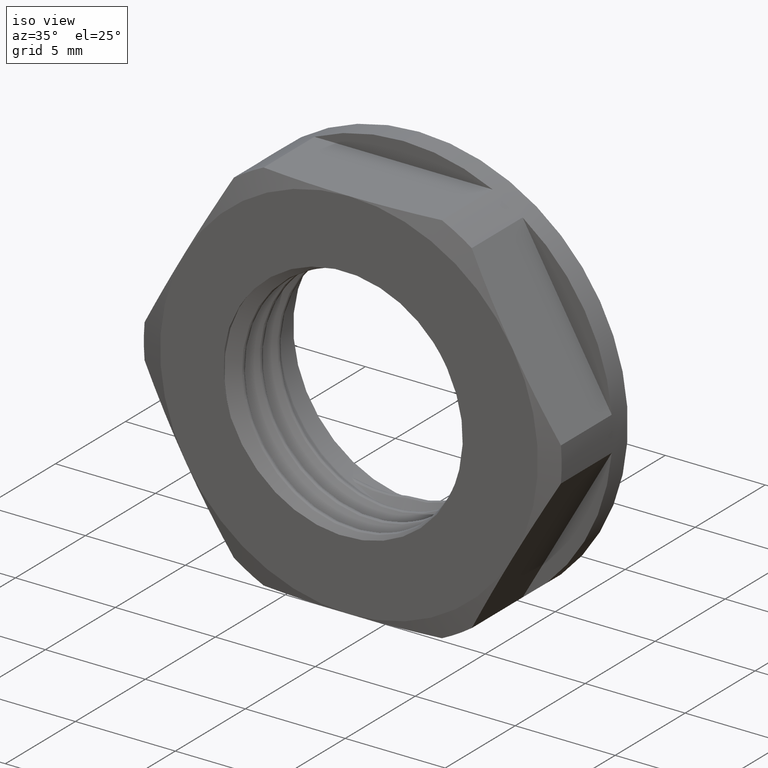
[diagram: clean part render]
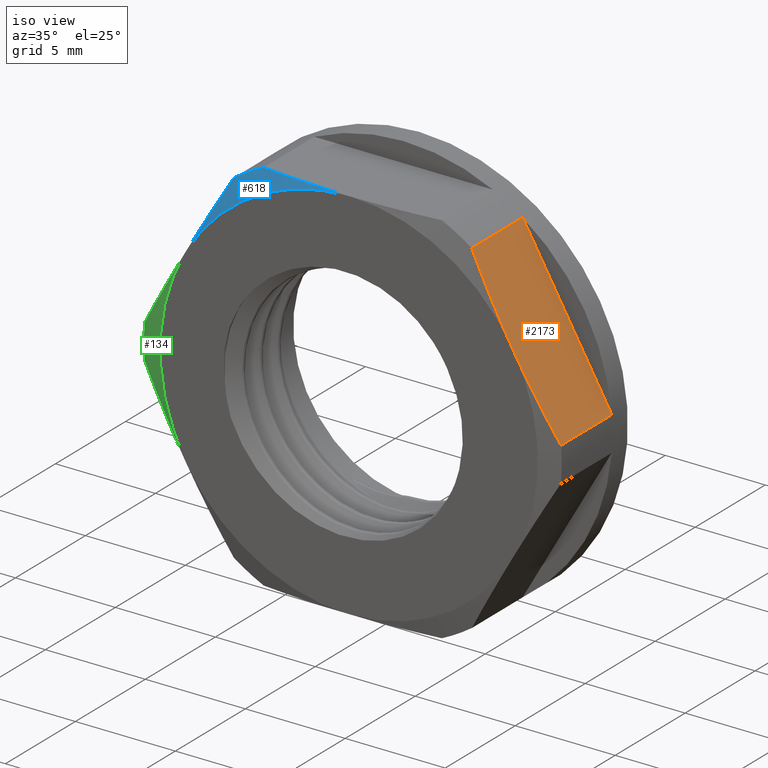
[diagram: same view with three faces highlighted in distinct colors, each labeled with its STEP entity id]
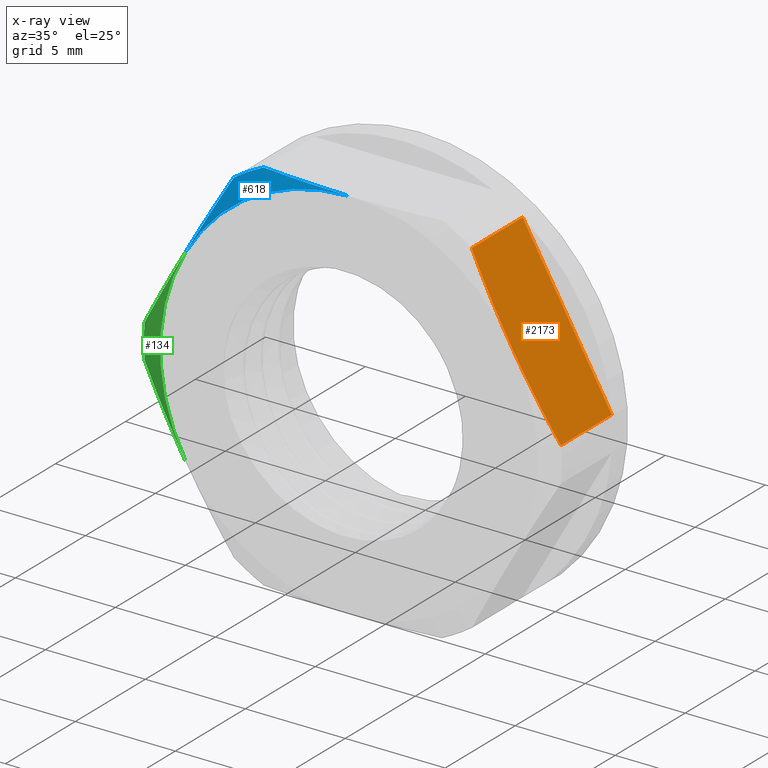
[diagram: x-ray of the same camera — body ghosted, the three highlighted faces saturated]
A machine part, iso view with three faces highlighted in distinct colors.
The next image is the same camera in x-ray (body ghosted, the three faces saturated) — at least one of them is partly hidden behind the body in this view.
Their STEP definitions:

[orange] entity #2173 — the highlighted planar face has unit normal (-0.866, 0, -0.5).
#133 = VECTOR ( 'NONE', #1901, 1000.000000000000000 ) ;
#207 = CARTESIAN_POINT ( 'NONE',  ( 8.183940065762941529, 2.409999999999999698, 4.724999999999999645 ) ) ;
#303 = FACE_OUTER_BOUND ( 'NONE', #1942, .T. ) ;
#335 = EDGE_CURVE ( 'NONE', #1764, #1808, #1727, .T. ) ;
#346 = CARTESIAN_POINT ( 'NONE',  ( 10.41441086808250027, 2.677949192431114955, 0.8617112455836100082 ) ) ;
#354 = DIRECTION ( 'NONE',  ( -0.4999999999999998890, 0.0000000000000000000, 0.8660254037844387076 ) ) ;
#415 = DIRECTION ( 'NONE',  ( -0.4999999999999998890, 0.0000000000000000000, 0.8660254037844387076 ) ) ;
#438 = ORIENTED_EDGE ( 'NONE', *, *, #335, .F. ) ;
#474 = ORIENTED_EDGE ( 'NONE', *, *, #1717, .F. ) ;
#560 = CARTESIAN_POINT ( 'NONE',  ( 5.953469263443389892, 2.677949192431114955, 8.588288754416380399 ) ) ;
#568 = AXIS2_PLACEMENT_3D ( 'NONE', #1875, #1983, #354 ) ;
#570 = CARTESIAN_POINT ( 'NONE',  ( 6.696959530883240141, 2.507863421158958772, 7.300525836277587999 ) ) ;
#605 = EDGE_CURVE ( 'NONE', #1851, #1134, #1645, .T. ) ;
#622 = LINE ( 'NONE', #1936, #810 ) ;
#743 = ORIENTED_EDGE ( 'NONE', *, *, #605, .F. ) ;
#810 = VECTOR ( 'NONE', #415, 1000.000000000000000 ) ;
#916 = B_SPLINE_CURVE_WITH_KNOTS ( 'NONE', 3,
 ( #346, #1051, #1735, #207 ),
 .UNSPECIFIED., .F., .F.,
 ( 4, 4 ),
 ( 2.309401076656162442E-07, 0.004461172544746781765 ),
 .UNSPECIFIED. ) ;
#951 = CARTESIAN_POINT ( 'NONE',  ( 5.953469263443389892, 6.309999999999999609, 8.588288754416380399 ) ) ;
#1025 = VECTOR ( 'NONE', #2149, 1000.000000000000000 ) ;
#1051 = CARTESIAN_POINT ( 'NONE',  ( 9.670920600642643805, 2.507863421158958772, 2.149474163722405518 ) ) ;
#1134 = VERTEX_POINT ( 'NONE', #1598 ) ;
#1219 = CARTESIAN_POINT ( 'NONE',  ( 5.953469263443389892, 34.48836049169644724, 8.588288754416380399 ) ) ;
#1256 = CARTESIAN_POINT ( 'NONE',  ( 5.953469263443389892, 2.677949192431114955, 8.588288754416380399 ) ) ;
#1400 = CARTESIAN_POINT ( 'NONE',  ( 8.183940065762941529, 2.409999999999999698, 4.724999999999999645 ) ) ;
#1415 = ORIENTED_EDGE ( 'NONE', *, *, #1420, .T. ) ;
#1420 = EDGE_CURVE ( 'NONE', #1785, #1808, #2048, .T. ) ;
#1598 = CARTESIAN_POINT ( 'NONE',  ( 10.41441086808250027, 2.677949192431114955, 0.8617112455836100082 ) ) ;
#1621 = CARTESIAN_POINT ( 'NONE',  ( 8.183940065762941529, 2.409999999999999698, 4.724999999999999645 ) ) ;
#1645 = LINE ( 'NONE', #2160, #1025 ) ;
#1694 = ORIENTED_EDGE ( 'NONE', *, *, #1910, .T. ) ;
#1717 = EDGE_CURVE ( 'NONE', #1134, #1764, #916, .T. ) ;
#1727 = B_SPLINE_CURVE_WITH_KNOTS ( 'NONE', 3,
 ( #1400, #2083, #570, #560 ),
 .UNSPECIFIED., .F., .F.,
 ( 4, 4 ),
 ( 0.004461172544746781765, 0.008922114149385883958 ),
 .UNSPECIFIED. ) ;
#1735 = CARTESIAN_POINT ( 'NONE',  ( 8.927430333202794444, 2.409999999999999254, 3.437237081861203691 ) ) ;
#1764 = VERTEX_POINT ( 'NONE', #1621 ) ;
#1785 = VERTEX_POINT ( 'NONE', #951 ) ;
#1791 = CARTESIAN_POINT ( 'NONE',  ( 10.41441086808250027, 6.309999999999999609, 0.8617112455836110074 ) ) ;
#1808 = VERTEX_POINT ( 'NONE', #1256 ) ;
#1851 = VERTEX_POINT ( 'NONE', #1791 ) ;
#1875 = CARTESIAN_POINT ( 'NONE',  ( 5.953469263443389892, 34.48836049169644724, 8.588288754416380399 ) ) ;
#1901 = DIRECTION ( 'NONE',  ( 0.0000000000000000000, -1.000000000000000000, 0.0000000000000000000 ) ) ;
#1910 = EDGE_CURVE ( 'NONE', #1851, #1785, #622, .T. ) ;
#1936 = CARTESIAN_POINT ( 'NONE',  ( 5.953469263443389892, 6.309999999999999609, 8.588288754416380399 ) ) ;
#1942 = EDGE_LOOP ( 'NONE', ( #474, #743, #1694, #1415, #438 ) ) ;
#1983 = DIRECTION ( 'NONE',  ( -0.8660254037844387076, 0.0000000000000000000, -0.4999999999999998890 ) ) ;
#2007 = PLANE ( 'NONE',  #568 ) ;
#2048 = LINE ( 'NONE', #1219, #133 ) ;
#2083 = CARTESIAN_POINT ( 'NONE',  ( 7.440449798323090391, 2.409999999999999254, 6.012762918138793822 ) ) ;
#2149 = DIRECTION ( 'NONE',  ( 0.0000000000000000000, -1.000000000000000000, 0.0000000000000000000 ) ) ;
#2160 = CARTESIAN_POINT ( 'NONE',  ( 10.41441086808250027, 34.48836049169644724, 0.8617112455836110074 ) ) ;
#2173 = ADVANCED_FACE ( 'NONE', ( #303 ), #2007, .F. ) ;

[blue] entity #618 — the highlighted conical surface has half-angle 75 deg.
#65 = CIRCLE ( 'NONE', #2101, 9.449999999999999289 ) ;
#113 = CARTESIAN_POINT ( 'NONE',  ( 0.0000000000000000000, 3.329373671160774872, -1.016253287562780210E-15 ) ) ;
#179 = CARTESIAN_POINT ( 'NONE',  ( -5.953469263443389892, 2.677949192431114955, 8.588288754416380399 ) ) ;
#239 = ORIENTED_EDGE ( 'NONE', *, *, #884, .T. ) ;
#299 = CARTESIAN_POINT ( 'NONE',  ( 0.0000000000000000000, 2.409999999999999698, 9.449999999999999289 ) ) ;
#345 = DIRECTION ( 'NONE',  ( 0.0000000000000000000, -9.178431089824376422E-17, 1.000000000000000000 ) ) ;
#348 = B_SPLINE_CURVE_WITH_KNOTS ( 'NONE', 3,
 ( #299, #1666, #973, #1834, #1138, #643 ),
 .UNSPECIFIED., .F., .F.,
 ( 4, 2, 4 ),
 ( 0.02329190791741629976, 0.02552634913787470844, 0.02776079035833311712 ),
 .UNSPECIFIED. ) ;
#382 = CARTESIAN_POINT ( 'NONE',  ( -7.440449798323092168, 2.410000000000000142, 6.012762918138793822 ) ) ;
#611 = CARTESIAN_POINT ( 'NONE',  ( 0.0000000000000000000, 2.677949192431114955, -1.089157098834630045E-15 ) ) ;
#618 = ADVANCED_FACE ( 'NONE', ( #1612 ), #846, .T. ) ;
#620 = DIRECTION ( 'NONE',  ( 0.0000000000000000000, -1.245016848787182258E-16, 1.000000000000000000 ) ) ;
#643 = CARTESIAN_POINT ( 'NONE',  ( -4.460941604639105051, 2.677949192431114955, 9.449999999999999289 ) ) ;
#681 = EDGE_CURVE ( 'NONE', #755, #1078, #65, .T. ) ;
#709 = ORIENTED_EDGE ( 'NONE', *, *, #681, .T. ) ;
#755 = VERTEX_POINT ( 'NONE', #1532 ) ;
#846 = CONICAL_SURFACE ( 'NONE', #1423, 12.88114925191321980, 1.308996938995753645 ) ;
#884 = EDGE_CURVE ( 'NONE', #1078, #1615, #348, .T. ) ;
#894 = CARTESIAN_POINT ( 'NONE',  ( 0.0000000000000000000, 2.409999999999999698, 9.449999999999999289 ) ) ;
#973 = CARTESIAN_POINT ( 'NONE',  ( -1.485064377453213069, 2.433721300150043287, 9.449999999999999289 ) ) ;
#986 = DIRECTION ( 'NONE',  ( 0.0000000000000000000, 1.000000000000000000, 1.119144484929695838E-16 ) ) ;
#996 = CARTESIAN_POINT ( 'NONE',  ( 0.0000000000000000000, 2.409999999999999698, -1.119144484929696183E-15 ) ) ;
#1020 = EDGE_CURVE ( 'NONE', #1090, #1615, #1110, .T. ) ;
#1078 = VERTEX_POINT ( 'NONE', #894 ) ;
#1090 = VERTEX_POINT ( 'NONE', #1422 ) ;
#1110 = CIRCLE ( 'NONE', #1324, 10.44999999999999929 ) ;
#1121 = ORIENTED_EDGE ( 'NONE', *, *, #1020, .F. ) ;
#1124 = EDGE_LOOP ( 'NONE', ( #239, #1121, #1485, #709 ) ) ;
#1138 = CARTESIAN_POINT ( 'NONE',  ( -3.719023987172681345, 2.593086191721213130, 9.450000000000001066 ) ) ;
#1278 = DIRECTION ( 'NONE',  ( 0.0000000000000000000, -1.010036124524652310E-16, 1.000000000000000000 ) ) ;
#1324 = AXIS2_PLACEMENT_3D ( 'NONE', #611, #1991, #620 ) ;
#1370 = CARTESIAN_POINT ( 'NONE',  ( -6.696959530883241918, 2.507863421158959216, 7.300525836277587111 ) ) ;
#1404 = EDGE_CURVE ( 'NONE', #1090, #755, #2089, .T. ) ;
#1422 = CARTESIAN_POINT ( 'NONE',  ( -5.953469263443389892, 2.677949192431114955, 8.588288754416380399 ) ) ;
#1423 = AXIS2_PLACEMENT_3D ( 'NONE', #113, #1803, #1278 ) ;
#1485 = ORIENTED_EDGE ( 'NONE', *, *, #1404, .T. ) ;
#1531 = CARTESIAN_POINT ( 'NONE',  ( -8.183940065762941529, 2.409999999999999698, 4.724999999999999645 ) ) ;
#1532 = CARTESIAN_POINT ( 'NONE',  ( -8.183940065762941529, 2.409999999999999698, 4.724999999999999645 ) ) ;
#1612 = FACE_OUTER_BOUND ( 'NONE', #1124, .T. ) ;
#1615 = VERTEX_POINT ( 'NONE', #1723 ) ;
#1666 = CARTESIAN_POINT ( 'NONE',  ( -0.7420142344014981628, 2.409999999999999698, 9.449999999999997513 ) ) ;
#1723 = CARTESIAN_POINT ( 'NONE',  ( -4.460941604639105051, 2.677949192431114955, 9.449999999999999289 ) ) ;
#1803 = DIRECTION ( 'NONE',  ( 0.0000000000000000000, 1.000000000000000000, 1.119144484929695838E-16 ) ) ;
#1834 = CARTESIAN_POINT ( 'NONE',  ( -2.973090280553778886, 2.525258656057692619, 9.449999999999999289 ) ) ;
#1991 = DIRECTION ( 'NONE',  ( 0.0000000000000000000, 1.000000000000000000, 1.119144484929695838E-16 ) ) ;
#2089 = B_SPLINE_CURVE_WITH_KNOTS ( 'NONE', 3,
 ( #179, #1370, #382, #1531 ),
 .UNSPECIFIED., .F., .F.,
 ( 4, 4 ),
 ( 2.309401076763871417E-07, 0.004461172544746779163 ),
 .UNSPECIFIED. ) ;
#2101 = AXIS2_PLACEMENT_3D ( 'NONE', #996, #986, #345 ) ;

[green] entity #134 — the highlighted conical surface has half-angle 75 deg.
#134 = ADVANCED_FACE ( 'NONE', ( #668 ), #679, .T. ) ;
#141 = DIRECTION ( 'NONE',  ( 0.0000000000000000000, -9.178431089824376422E-17, 1.000000000000000000 ) ) ;
#152 = CARTESIAN_POINT ( 'NONE',  ( -9.670920600642645582, 2.507863421158959660, -2.149474163722403741 ) ) ;
#167 = B_SPLINE_CURVE_WITH_KNOTS ( 'NONE', 3,
 ( #1012, #152, #1519, #2201 ),
 .UNSPECIFIED., .F., .F.,
 ( 4, 4 ),
 ( 2.309401076668368717E-07, 0.004461172544746784367 ),
 .UNSPECIFIED. ) ;
#221 = DIRECTION ( 'NONE',  ( 0.0000000000000000000, 1.000000000000000000, 1.119144484929695838E-16 ) ) ;
#312 = B_SPLINE_CURVE_WITH_KNOTS ( 'NONE', 3,
 ( #2037, #523, #1049, #344 ),
 .UNSPECIFIED., .F., .F.,
 ( 4, 4 ),
 ( 0.004461172544746779163, 0.008922114149385899570 ),
 .UNSPECIFIED. ) ;
#330 = AXIS2_PLACEMENT_3D ( 'NONE', #1749, #221, #1557 ) ;
#344 = CARTESIAN_POINT ( 'NONE',  ( -10.41441086808250027, 2.677949192431114955, 0.8617112455836020146 ) ) ;
#430 = EDGE_CURVE ( 'NONE', #1066, #958, #1826, .T. ) ;
#476 = DIRECTION ( 'NONE',  ( 0.0000000000000000000, -1.010036124524652310E-16, 1.000000000000000000 ) ) ;
#511 = AXIS2_PLACEMENT_3D ( 'NONE', #1674, #971, #476 ) ;
#523 = CARTESIAN_POINT ( 'NONE',  ( -8.927430333202794444, 2.410000000000000142, 3.437237081861202359 ) ) ;
#590 = CARTESIAN_POINT ( 'NONE',  ( -10.41441086808250027, 2.677949192431114955, -0.8617112455836070106 ) ) ;
#627 = ORIENTED_EDGE ( 'NONE', *, *, #1308, .T. ) ;
#668 = FACE_OUTER_BOUND ( 'NONE', #1972, .T. ) ;
#679 = CONICAL_SURFACE ( 'NONE', #511, 12.88114925191321980, 1.308996938995753645 ) ;
#755 = VERTEX_POINT ( 'NONE', #1532 ) ;
#832 = ORIENTED_EDGE ( 'NONE', *, *, #1447, .T. ) ;
#958 = VERTEX_POINT ( 'NONE', #1465 ) ;
#971 = DIRECTION ( 'NONE',  ( 0.0000000000000000000, 1.000000000000000000, 1.119144484929695838E-16 ) ) ;
#1012 = CARTESIAN_POINT ( 'NONE',  ( -10.41441086808250027, 2.677949192431114955, -0.8617112455836070106 ) ) ;
#1049 = CARTESIAN_POINT ( 'NONE',  ( -9.670920600642649134, 2.507863421158960104, 2.149474163722403741 ) ) ;
#1066 = VERTEX_POINT ( 'NONE', #590 ) ;
#1068 = ORIENTED_EDGE ( 'NONE', *, *, #430, .F. ) ;
#1108 = AXIS2_PLACEMENT_3D ( 'NONE', #1347, #1159, #141 ) ;
#1159 = DIRECTION ( 'NONE',  ( 0.0000000000000000000, 1.000000000000000000, 1.119144484929695838E-16 ) ) ;
#1228 = EDGE_CURVE ( 'NONE', #1379, #755, #2144, .T. ) ;
#1308 = EDGE_CURVE ( 'NONE', #1066, #1379, #167, .T. ) ;
#1347 = CARTESIAN_POINT ( 'NONE',  ( 0.0000000000000000000, 2.409999999999999698, -1.119144484929696183E-15 ) ) ;
#1366 = ORIENTED_EDGE ( 'NONE', *, *, #1228, .T. ) ;
#1379 = VERTEX_POINT ( 'NONE', #2069 ) ;
#1447 = EDGE_CURVE ( 'NONE', #755, #958, #312, .T. ) ;
#1465 = CARTESIAN_POINT ( 'NONE',  ( -10.41441086808250027, 2.677949192431114955, 0.8617112455836020146 ) ) ;
#1519 = CARTESIAN_POINT ( 'NONE',  ( -8.927430333202794444, 2.410000000000000142, -3.437237081861201915 ) ) ;
#1532 = CARTESIAN_POINT ( 'NONE',  ( -8.183940065762941529, 2.409999999999999698, 4.724999999999999645 ) ) ;
#1557 = DIRECTION ( 'NONE',  ( 0.0000000000000000000, -1.245016848787182258E-16, 1.000000000000000000 ) ) ;
#1674 = CARTESIAN_POINT ( 'NONE',  ( 0.0000000000000000000, 3.329373671160774872, -1.016253287562780210E-15 ) ) ;
#1749 = CARTESIAN_POINT ( 'NONE',  ( 0.0000000000000000000, 2.677949192431114955, -1.089157098834630045E-15 ) ) ;
#1826 = CIRCLE ( 'NONE', #330, 10.44999999999999929 ) ;
#1972 = EDGE_LOOP ( 'NONE', ( #627, #1366, #832, #1068 ) ) ;
#2037 = CARTESIAN_POINT ( 'NONE',  ( -8.183940065762941529, 2.409999999999999698, 4.724999999999999645 ) ) ;
#2069 = CARTESIAN_POINT ( 'NONE',  ( -8.183940065762941529, 2.409999999999999698, -4.724999999999999645 ) ) ;
#2144 = CIRCLE ( 'NONE', #1108, 9.449999999999999289 ) ;
#2201 = CARTESIAN_POINT ( 'NONE',  ( -8.183940065762941529, 2.409999999999999698, -4.724999999999999645 ) ) ;